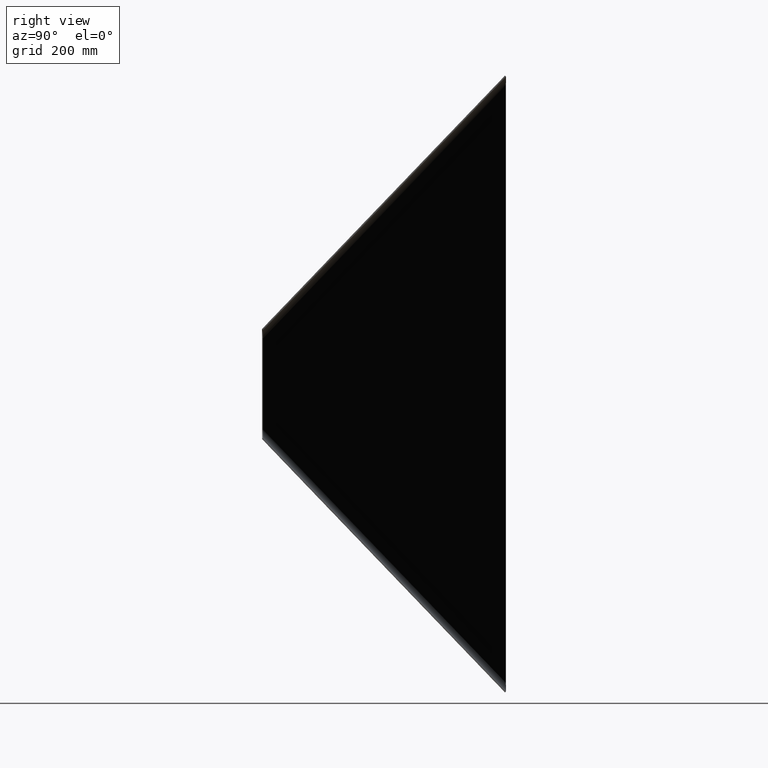
[diagram: clean part render]
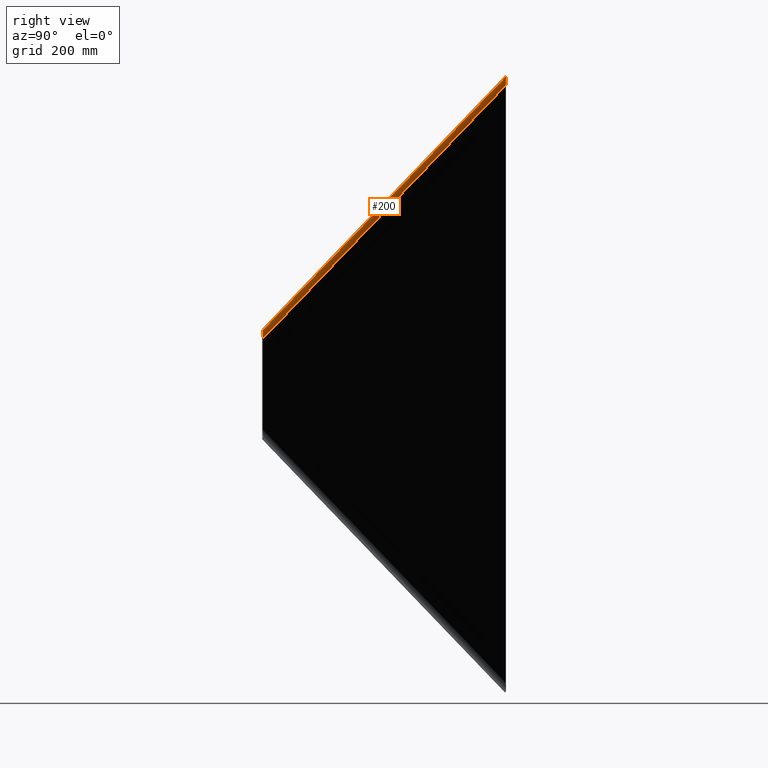
[diagram: same view with one face highlighted and labeled with its STEP entity id]
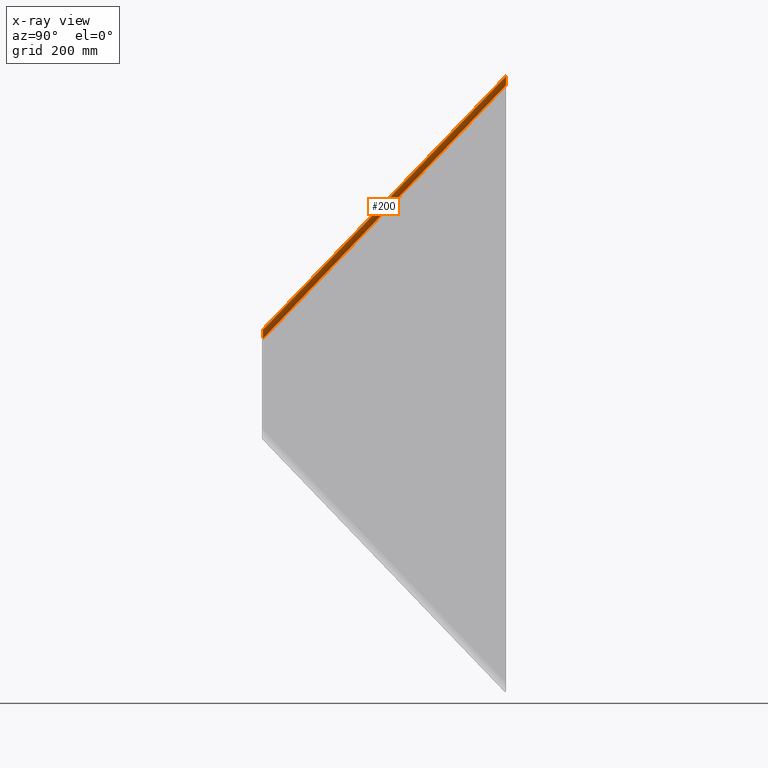
[diagram: x-ray of the same camera — body ghosted, the highlighted face saturated]
A machine part, right view. The second image highlights one B-rep face of the part: STEP entity #200.
The next image is the same camera in x-ray: the body ghosted, the highlighted face saturated — about 0% of this face is hidden behind the body in this view.
In plain terms, the highlighted face is a freeform B-spline surface patch.
Its self-contained STEP definition (entity closure, byte-faithful):
#26 = CARTESIAN_POINT ( 'NONE',  ( -314.5592245494583494, 242.6390577948969565, 332.7367033786110824 ) ) ;
#27 = CARTESIAN_POINT ( 'NONE',  ( -332.5903318367700194, 242.4987048197434660, 311.6666666666666856 ) ) ;
#33 = CARTESIAN_POINT ( 'NONE',  ( -736.5601198852359630, 631.4212336046149403, 725.2586042538505353 ) ) ;
#37 = CARTESIAN_POINT ( 'NONE',  ( -129.9236651701034475, 48.16537148641014454, 109.0000000000000142 ) ) ;
#47 = B_SPLINE_SURFACE_WITH_KNOTS ( 'NONE', 3, 3, ( 
 ( #451, #466, #84, #714 ),
 ( #718, #265, #26, #791 ),
 ( #209, #388, #180, #725 ),
 ( #657, #384, #369, #329 ),
 ( #393, #528, #140, #639 ),
 ( #760, #202, #454, #56 ),
 ( #662, #599, #571, #823 ),
 ( #242, #434, #711, #131 ),
 ( #292, #278, #286, #612 ),
 ( #33, #810, #619, #669 ),
 ( #547, #541, #805, #609 ),
 ( #796, #554, #216, #482 ),
 ( #740, #160, #27, #412 ) ),
 .UNSPECIFIED., .F., .F., .F.,
 ( 4, 3, 3, 3, 4 ),
 ( 4, 4 ),
 ( -1.183291357831517708E-30, 0.2500000000000000000, 0.5000000000000000000, 0.7500000000000000000, 1.000000000000000000 ),
 ( 0.000000000000000000, 1.000000000000000000 ),
 .UNSPECIFIED. ) ;
#56 = CARTESIAN_POINT ( 'NONE',  ( -122.1394131048563452, 48.48304987480319994, 126.0001700317607884 ) ) ;
#59 = CARTESIAN_POINT ( 'NONE',  ( -717.0000000000001137, 631.1653714864103222, 737.9236651701036180 ) ) ;
#60 = CARTESIAN_POINT ( 'NONE',  ( -722.6966804969587201, 631.3765337100941224, 737.5781498940358460 ) ) ;
#84 = CARTESIAN_POINT ( 'NONE',  ( -311.6666666666666288, 242.4987048197434660, 332.5903318367701331 ) ) ;
#88 = VERTEX_POINT ( 'NONE', #787 ) ;
#96 = CARTESIAN_POINT ( 'NONE',  ( -130.0700310044805121, 48.30571898878164205, 111.8924450933145351 ) ) ;
#120 = CARTESIAN_POINT ( 'NONE',  ( -735.5420898764363073, 631.4659334991358719, 727.8205280107421231 ) ) ;
#122 = CARTESIAN_POINT ( 'NONE',  ( -737.9236651701032770, 631.1653714864102085, 717.0000000000001137 ) ) ;
#131 = CARTESIAN_POINT ( 'NONE',  ( -126.0001700317607600, 48.48304987480319994, 122.1394131048563736 ) ) ;
#134 = CARTESIAN_POINT ( 'NONE',  ( -535.2569985034367619, 436.8320381530768373, 514.3333333333333712 ) ) ;
#138 = VERTEX_POINT ( 'NONE', #295 ) ;
#140 = CARTESIAN_POINT ( 'NONE',  ( -322.4871946774085814, 242.7992668324691294, 330.2087565431031067 ) ) ;
#151 = VERTEX_POINT ( 'NONE', #752 ) ;
#160 = CARTESIAN_POINT ( 'NONE',  ( -535.2569985034367619, 436.8320381530768373, 514.3333333333333712 ) ) ;
#162 = CARTESIAN_POINT ( 'NONE',  ( -109.0000000000000711, 48.16537148641020138, 129.9236651701034475 ) ) ;
#179 = CARTESIAN_POINT ( 'NONE',  ( -737.5781498940356187, 631.3765337100941224, 722.6966804969590612 ) ) ;
#180 = CARTESIAN_POINT ( 'NONE',  ( -317.3633471636254058, 242.7098670434274368, 332.2448165607023611 ) ) ;
#194 = CARTESIAN_POINT ( 'NONE',  ( -119.8205280107419952, 48.46593349913584348, 127.5420898764364495 ) ) ;
#196 = CARTESIAN_POINT ( 'NONE',  ( -111.8924450933145351, 48.30571898878164205, 130.0700310044805121 ) ) ;
#200 = ADVANCED_FACE ( 'NONE', ( #667 ), #47, .F. ) ;
#202 = CARTESIAN_POINT ( 'NONE',  ( -527.4727464381896880, 437.1497165414698998, 531.3335033650943160 ) ) ;
#208 = ORIENTED_EDGE ( 'NONE', *, *, #607, .F. ) ;
#209 = CARTESIAN_POINT ( 'NONE',  ( -722.6966804969587201, 631.3765337100941224, 737.5781498940358460 ) ) ;
#216 = CARTESIAN_POINT ( 'NONE',  ( -332.7367033786110255, 242.6390577948969565, 314.5592245494584063 ) ) ;
#242 = CARTESIAN_POINT ( 'NONE',  ( -734.0001700317606037, 631.4830498748032142, 730.1394131048565441 ) ) ;
#247 = B_SPLINE_CURVE_WITH_KNOTS ( 'NONE', 3,
 ( #122, #134, #713, #323 ),
 .UNSPECIFIED., .F., .F.,
 ( 4, 4 ),
 ( 0.000000000000000000, 1.000000000000000000 ),
 .UNSPECIFIED. ) ;
#265 = CARTESIAN_POINT ( 'NONE',  ( -517.2258912161249782, 436.9723911282303561, 535.4033700452779385 ) ) ;
#278 = CARTESIAN_POINT ( 'NONE',  ( -532.8754232097696786, 437.1326001658025007, 525.1538613440753807 ) ) ;
#279 = B_SPLINE_CURVE_WITH_KNOTS ( 'NONE', 3,
 ( #59, #553, #569, #364 ),
 .UNSPECIFIED., .F., .F.,
 ( 4, 4 ),
 ( 0.000000000000000000, 1.000000000000000000 ),
 .UNSPECIFIED. ) ;
#286 = CARTESIAN_POINT ( 'NONE',  ( -330.2087565431031067, 242.7992668324691579, 322.4871946774086950 ) ) ;
#291 = CARTESIAN_POINT ( 'NONE',  ( -126.0001700317607600, 48.48304987480319994, 122.1394131048563452 ) ) ;
#292 = CARTESIAN_POINT ( 'NONE',  ( -735.5420898764363073, 631.4659334991358719, 727.8205280107421231 ) ) ;
#295 = CARTESIAN_POINT ( 'NONE',  ( -717.0000000000001137, 631.1653714864103222, 737.9236651701036180 ) ) ;
#318 = CARTESIAN_POINT ( 'NONE',  ( -719.8924450933142225, 631.3057189887816776, 738.0700310044805974 ) ) ;
#323 = CARTESIAN_POINT ( 'NONE',  ( -129.9236651701034475, 48.16537148641014454, 109.0000000000000142 ) ) ;
#329 = CARTESIAN_POINT ( 'NONE',  ( -117.2586042538504074, 48.42123360461498294, 128.5601198852360767 ) ) ;
#345 = VERTEX_POINT ( 'NONE', #162 ) ;
#354 = CARTESIAN_POINT ( 'NONE',  ( -129.5781498940357039, 48.37653371009412240, 114.6966804969588338 ) ) ;
#364 = CARTESIAN_POINT ( 'NONE',  ( -109.0000000000000711, 48.16537148641020138, 129.9236651701034475 ) ) ;
#369 = CARTESIAN_POINT ( 'NONE',  ( -319.9252709205170504, 242.7545669379482831, 331.2267865519027623 ) ) ;
#371 = ORIENTED_EDGE ( 'NONE', *, *, #405, .F. ) ;
#382 = CARTESIAN_POINT ( 'NONE',  ( -738.0700310044804837, 631.3057189887816776, 719.8924450933144499 ) ) ;
#384 = CARTESIAN_POINT ( 'NONE',  ( -522.5919375871836792, 437.0879002712816828, 533.8934532185695616 ) ) ;
#388 = CARTESIAN_POINT ( 'NONE',  ( -520.0300138302919777, 437.0432003767608649, 534.9114832273691036 ) ) ;
#389 = B_SPLINE_CURVE_WITH_KNOTS ( 'NONE', 3,
 ( #37, #96, #354, #618, #291, #809, #194, #442, #196, #706 ),
 .UNSPECIFIED., .F., .F.,
 ( 4, 2, 2, 2, 4 ),
 ( 0.000000000000000000, 0.2500000000000000000, 0.5000000000000000000, 0.7500000000000000000, 1.000000000000000000 ),
 .UNSPECIFIED. ) ;
#393 = CARTESIAN_POINT ( 'NONE',  ( -727.8205280107417821, 631.4659334991358719, 735.5420898764365347 ) ) ;
#405 = EDGE_CURVE ( 'NONE', #138, #151, #568, .T. ) ;
#412 = CARTESIAN_POINT ( 'NONE',  ( -129.9236651701033907, 48.16537148641018007, 109.0000000000000142 ) ) ;
#434 = CARTESIAN_POINT ( 'NONE',  ( -531.3335033650940886, 437.1497165414698998, 527.4727464381899154 ) ) ;
#442 = CARTESIAN_POINT ( 'NONE',  ( -114.6966804969588338, 48.37653371009412240, 129.5781498940357039 ) ) ;
#444 = CARTESIAN_POINT ( 'NONE',  ( -717.0000000000001137, 631.1653714864103222, 737.9236651701036180 ) ) ;
#451 = CARTESIAN_POINT ( 'NONE',  ( -716.9999999999998863, 631.1653714864102085, 737.9236651701035044 ) ) ;
#454 = CARTESIAN_POINT ( 'NONE',  ( -324.8060797715230024, 242.8163832081365001, 328.6668366984275167 ) ) ;
#466 = CARTESIAN_POINT ( 'NONE',  ( -514.3333333333332575, 436.8320381530768373, 535.2569985034368756 ) ) ;
#482 = CARTESIAN_POINT ( 'NONE',  ( -130.0700367119443968, 48.30572446156363497, 111.8925578827917349 ) ) ;
#508 = CARTESIAN_POINT ( 'NONE',  ( -730.1394131048562031, 631.4830498748032142, 734.0001700317608311 ) ) ;
#518 = EDGE_CURVE ( 'NONE', #138, #345, #279, .T. ) ;
#528 = CARTESIAN_POINT ( 'NONE',  ( -525.1538613440751533, 437.1326001658025007, 532.8754232097699060 ) ) ;
#541 = CARTESIAN_POINT ( 'NONE',  ( -534.9114832273688762, 437.0432003767608649, 520.0300138302922051 ) ) ;
#547 = CARTESIAN_POINT ( 'NONE',  ( -737.5781498940356187, 631.3765337100941224, 722.6966804969590612 ) ) ;
#553 = CARTESIAN_POINT ( 'NONE',  ( -514.3333333333332575, 436.8320381530768373, 535.2569985034368756 ) ) ;
#554 = CARTESIAN_POINT ( 'NONE',  ( -535.4033700452778248, 436.9723911282303561, 517.2258912161252056 ) ) ;
#568 = B_SPLINE_CURVE_WITH_KNOTS ( 'NONE', 3,
 ( #444, #318, #60, #708, #508, #764, #120, #179, #382, #699 ),
 .UNSPECIFIED., .F., .F.,
 ( 4, 2, 2, 2, 4 ),
 ( 0.000000000000000000, 0.2500000000000000000, 0.5000000000000000000, 0.7500000000000000000, 1.000000000000000000 ),
 .UNSPECIFIED. ) ;
#569 = CARTESIAN_POINT ( 'NONE',  ( -311.6666666666666288, 242.4987048197434660, 332.5903318367701331 ) ) ;
#571 = CARTESIAN_POINT ( 'NONE',  ( -326.7364582349751458, 242.8163832081365001, 326.7364582349753164 ) ) ;
#599 = CARTESIAN_POINT ( 'NONE',  ( -529.4031249016417178, 437.1497165414698998, 529.4031249016419451 ) ) ;
#607 = EDGE_CURVE ( 'NONE', #88, #345, #389, .T. ) ;
#609 = CARTESIAN_POINT ( 'NONE',  ( -129.5781498940356755, 48.37653371009412240, 114.6966804969588338 ) ) ;
#612 = CARTESIAN_POINT ( 'NONE',  ( -127.5420898764364779, 48.46593349913584348, 119.8205280107419952 ) ) ;
#618 = CARTESIAN_POINT ( 'NONE',  ( -127.5420898764364495, 48.46593349913584348, 119.8205280107419952 ) ) ;
#619 = CARTESIAN_POINT ( 'NONE',  ( -331.2267865519027055, 242.7545669379482831, 319.9252709205171641 ) ) ;
#639 = CARTESIAN_POINT ( 'NONE',  ( -119.8205280107419810, 48.46593349913584348, 127.5420898764364779 ) ) ;
#647 = EDGE_CURVE ( 'NONE', #151, #88, #247, .T. ) ;
#648 = ORIENTED_EDGE ( 'NONE', *, *, #518, .T. ) ;
#657 = CARTESIAN_POINT ( 'NONE',  ( -725.2586042538501943, 631.4212336046149403, 736.5601198852361904 ) ) ;
#662 = CARTESIAN_POINT ( 'NONE',  ( -732.0697915683084602, 631.4830498748032142, 732.0697915683088013 ) ) ;
#667 = FACE_OUTER_BOUND ( 'NONE', #709, .T. ) ;
#669 = CARTESIAN_POINT ( 'NONE',  ( -128.5601198852360767, 48.42123360461498294, 117.2586042538504216 ) ) ;
#699 = CARTESIAN_POINT ( 'NONE',  ( -737.9236651701032770, 631.1653714864102085, 717.0000000000001137 ) ) ;
#706 = CARTESIAN_POINT ( 'NONE',  ( -109.0000000000000711, 48.16537148641020138, 129.9236651701034475 ) ) ;
#708 = CARTESIAN_POINT ( 'NONE',  ( -727.8205280107417821, 631.4659334991358719, 735.5420898764365347 ) ) ;
#709 = EDGE_LOOP ( 'NONE', ( #371, #648, #208, #812 ) ) ;
#711 = CARTESIAN_POINT ( 'NONE',  ( -328.6668366984273462, 242.8163832081365001, 324.8060797715231729 ) ) ;
#713 = CARTESIAN_POINT ( 'NONE',  ( -332.5903318367700194, 242.4987048197434660, 311.6666666666666856 ) ) ;
#714 = CARTESIAN_POINT ( 'NONE',  ( -109.0000000000000142, 48.16537148641018007, 129.9236651701033907 ) ) ;
#718 = CARTESIAN_POINT ( 'NONE',  ( -719.8925578827916070, 631.3057244615636137, 738.0700367119445673 ) ) ;
#725 = CARTESIAN_POINT ( 'NONE',  ( -114.6966804969588196, 48.37653371009412240, 129.5781498940356755 ) ) ;
#740 = CARTESIAN_POINT ( 'NONE',  ( -737.9236651701032770, 631.1653714864102085, 717.0000000000001137 ) ) ;
#752 = CARTESIAN_POINT ( 'NONE',  ( -737.9236651701032770, 631.1653714864102085, 717.0000000000001137 ) ) ;
#760 = CARTESIAN_POINT ( 'NONE',  ( -730.1394131048562031, 631.4830498748032142, 734.0001700317609448 ) ) ;
#764 = CARTESIAN_POINT ( 'NONE',  ( -734.0001700317606037, 631.4830498748032142, 730.1394131048564304 ) ) ;
#787 = CARTESIAN_POINT ( 'NONE',  ( -129.9236651701034475, 48.16537148641014454, 109.0000000000000142 ) ) ;
#791 = CARTESIAN_POINT ( 'NONE',  ( -111.8925578827917349, 48.30572446156363497, 130.0700367119443968 ) ) ;
#796 = CARTESIAN_POINT ( 'NONE',  ( -738.0700367119443399, 631.3057244615636137, 719.8925578827918343 ) ) ;
#805 = CARTESIAN_POINT ( 'NONE',  ( -332.2448165607023043, 242.7098670434274368, 317.3633471636255763 ) ) ;
#809 = CARTESIAN_POINT ( 'NONE',  ( -122.1394131048563594, 48.48304987480319994, 126.0001700317607600 ) ) ;
#810 = CARTESIAN_POINT ( 'NONE',  ( -533.8934532185693342, 437.0879002712816828, 522.5919375871839065 ) ) ;
#812 = ORIENTED_EDGE ( 'NONE', *, *, #647, .F. ) ;
#823 = CARTESIAN_POINT ( 'NONE',  ( -124.0697915683085455, 48.48304987480319994, 124.0697915683085739 ) ) ;